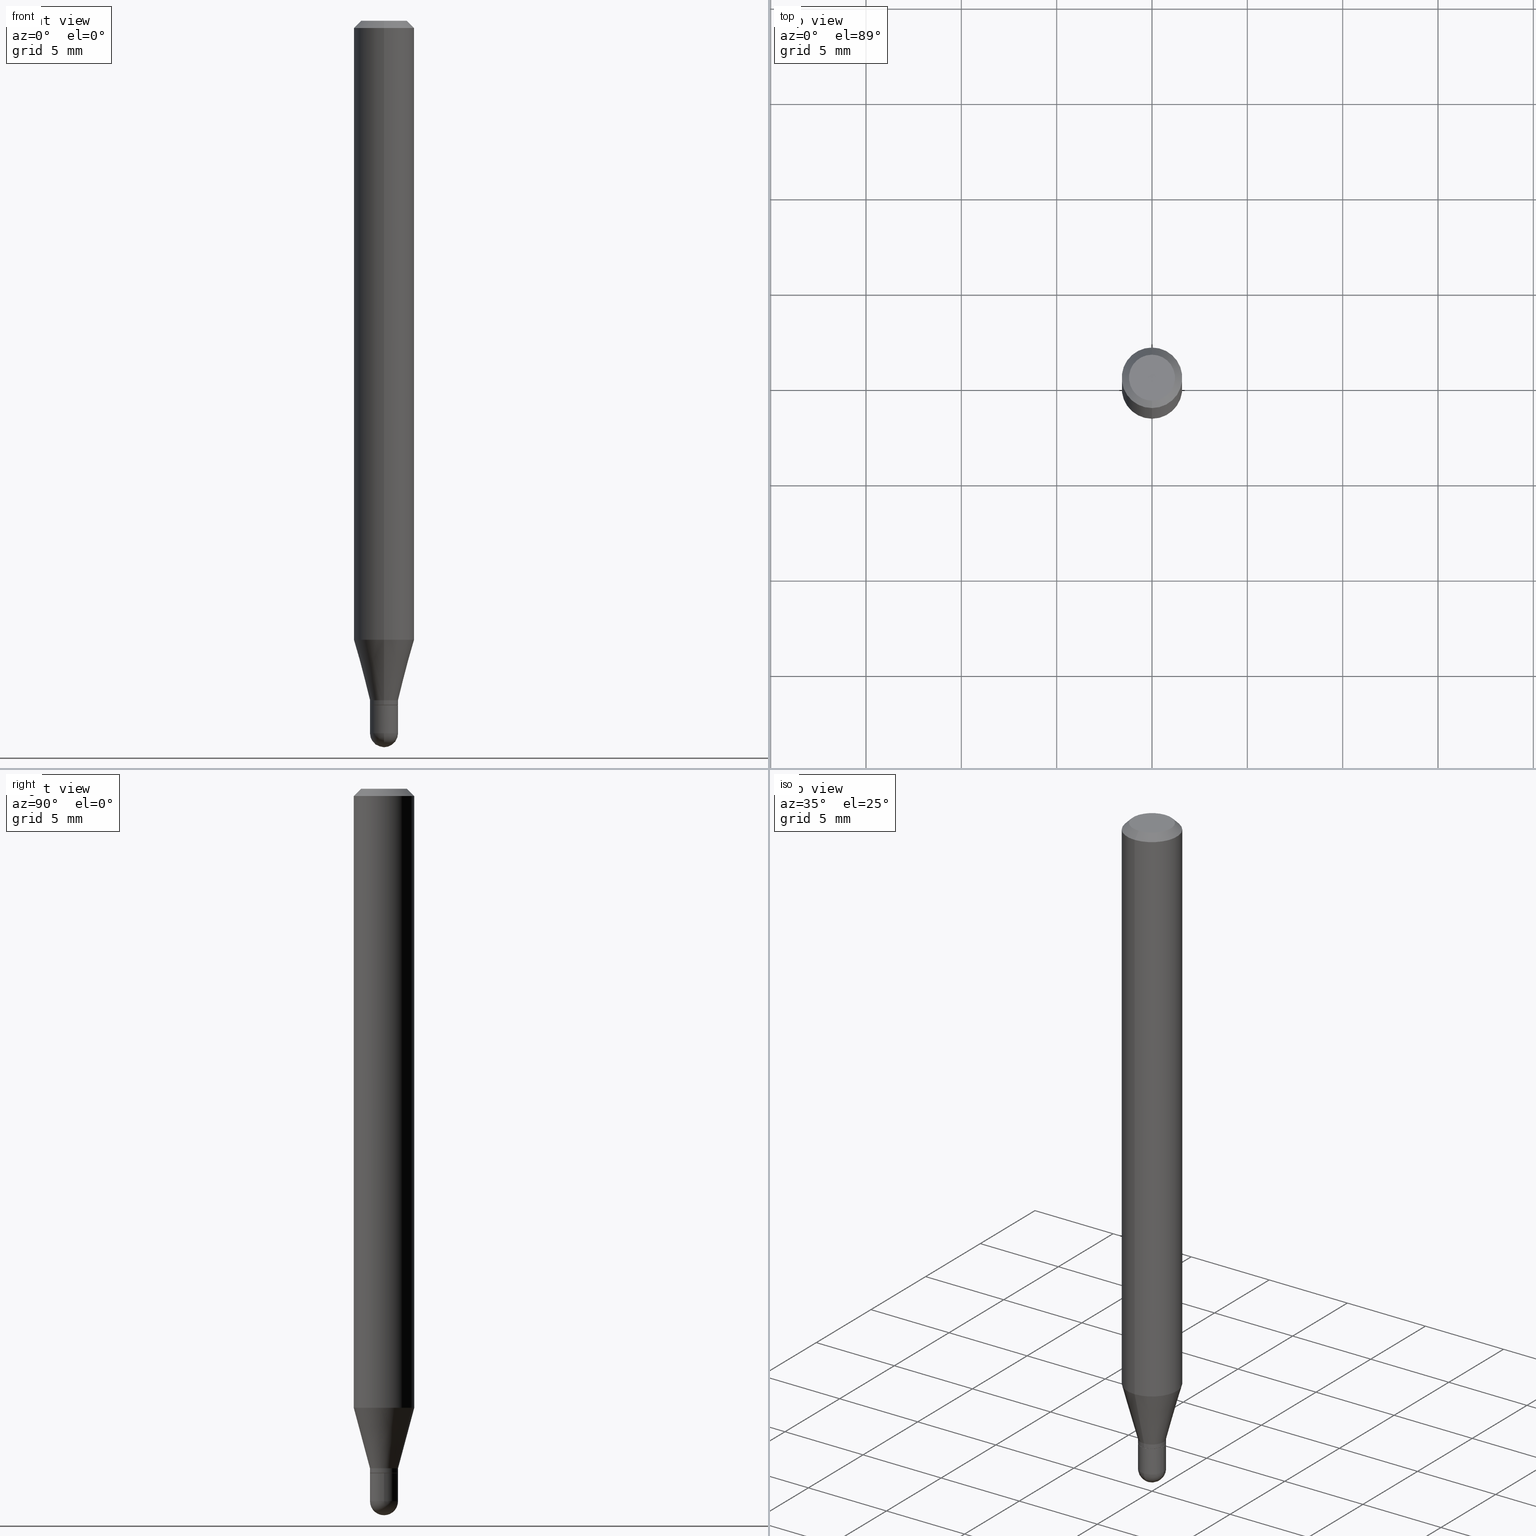
[diagram: canonical four-view strip — front | top / right | iso, engineering-drawing reading convention]
A machine part, canonical four-view strip (front | top / right | iso — engineering-drawing reading convention). The complete STEP part file that produces these views, byte-faithful:
ISO-10303-21;
HEADER;
FILE_DESCRIPTION (( 'STEP AP203' ),
    '1' );
FILE_NAME ('02555.STEP',
    '2024-03-07T20:24:32',
    ( '' ),
    ( '' ),
    'SwSTEP 2.0',
    'SolidWorks 2023',
    '' );
FILE_SCHEMA (( 'CONFIG_CONTROL_DESIGN' ));
ENDSEC;

DATA;
#1 = EDGE_CURVE ( 'NONE', #378, #323, #385, .T. ) ;
#2 = VERTEX_POINT ( 'NONE', #227 ) ;
#3 = CALENDAR_DATE ( 2024, 7, 3 ) ;
#4 = ORIENTED_EDGE ( 'NONE', *, *, #7, .F. ) ;
#5 = CARTESIAN_POINT ( 'NONE',  ( 3.316907271900976096E-16, 0.04749999999999999362, -3.299189830042509647E-16 ) ) ;
#6 = APPROVAL_ROLE ( '' ) ;
#7 = EDGE_CURVE ( 'NONE', #416, #2, #239, .T. ) ;
#8 = CYLINDRICAL_SURFACE ( 'NONE', #137, 0.02900000000000000147 ) ;
#9 = CARTESIAN_POINT ( 'NONE',  ( 3.668196789959787324E-31, -5.237231201093571383E-17, -0.01500000000000032904 ) ) ;
#10 = ORIENTED_EDGE ( 'NONE', *, *, #46, .T. ) ;
#11 = EDGE_LOOP ( 'NONE', ( #65, #201, #116, #58 ) ) ;
#12 = AXIS2_PLACEMENT_3D ( 'NONE', #178, #182, #143 ) ;
#13 = AXIS2_PLACEMENT_3D ( 'NONE', #117, #276, #393 ) ;
#14 = EDGE_LOOP ( 'NONE', ( #82, #89, #37, #197 ) ) ;
#15 = FACE_OUTER_BOUND ( 'NONE', #14, .T. ) ;
#16 = CARTESIAN_POINT ( 'NONE',  ( 4.364351673553919652E-16, 0.06249999999999995143, -0.01500000000000054588 ) ) ;
#17 = AXIS2_PLACEMENT_3D ( 'NONE', #281, #473, #343 ) ;
#18 = CIRCLE ( 'NONE', #490, 0.06250000000000000000 ) ;
#19 = VERTEX_POINT ( 'NONE', #483 ) ;
#20 = LINE ( 'NONE', #64, #56 ) ;
#21 = EDGE_CURVE ( 'NONE', #19, #365, #290, .T. ) ;
#22 = ORIENTED_EDGE ( 'NONE', *, *, #133, .T. ) ;
#23 = CYLINDRICAL_SURFACE ( 'NONE', #160, 0.06250000000000000000 ) ;
#24 = EDGE_CURVE ( 'NONE', #390, #60, #268, .T. ) ;
#25 = FACE_OUTER_BOUND ( 'NONE', #465, .T. ) ;
#26 = DIRECTION ( 'NONE',  ( 1.000000000000000000, -6.982962677686265922E-15, 0.000000000000000000 ) ) ;
#27 = VECTOR ( 'NONE', #436, 39.37007874015748854 ) ;
#28 = CARTESIAN_POINT ( 'NONE',  ( 3.597284613898336423E-29, -5.135969049438267814E-15, -1.471000000000000307 ) ) ;
#29 = LINE ( 'NONE', #255, #57 ) ;
#30 = ORIENTED_EDGE ( 'NONE', *, *, #362, .F. ) ;
#31 = DIRECTION ( 'NONE',  ( 1.000000000000000000, -6.982962677686265922E-15, 4.883557194083112340E-29 ) ) ;
#32 = DIRECTION ( 'NONE',  ( -2.445464526639804686E-29, 3.491487467395637572E-15, 1.000000000000000000 ) ) ;
#33 = PERSON_AND_ORGANIZATION_ROLE ( 'design_owner' ) ;
#34 = DIRECTION ( 'NONE',  ( -6.982962677686265922E-15, -1.000000000000000000, 0.000000000000000000 ) ) ;
#35 = APPROVAL_DATE_TIME ( #384, #97 ) ;
#36 = CIRCLE ( 'NONE', #442, 0.04749999999999999362 ) ;
#37 = ORIENTED_EDGE ( 'NONE', *, *, #507, .T. ) ;
#38 = AXIS2_PLACEMENT_3D ( 'NONE', #261, #475, #420 ) ;
#39 = DIRECTION ( 'NONE',  ( -6.982962677686265922E-15, -1.000000000000000000, 3.483106191921935554E-15 ) ) ;
#40 = SECURITY_CLASSIFICATION_LEVEL ( 'unclassified' ) ;
#41 = VERTEX_POINT ( 'NONE', #354 ) ;
#42 = LINE ( 'NONE', #162, #404 ) ;
#43 = EDGE_LOOP ( 'NONE', ( #455, #297, #247, #307 ) ) ;
#44 = DIRECTION ( 'NONE',  ( -4.937700262164674260E-15, -0.7071067811865632269, 0.7071067811865319186 ) ) ;
#45 = LOCAL_TIME ( 15, 24, 32.00000000000000000, #74 ) ;
#46 = EDGE_CURVE ( 'NONE', #78, #396, #120, .T. ) ;
#47 = APPROVAL ( #353, 'UNSPECIFIED' ) ;
#48 = ADVANCED_FACE ( 'NONE', ( #230 ), #233, .T. ) ;
#49 = VECTOR ( 'NONE', #418, 39.37007874015748143 ) ;
#50 = AXIS2_PLACEMENT_3D ( 'NONE', #402, #168, #128 ) ;
#51 = VERTEX_POINT ( 'NONE', #237 ) ;
#52 = ADVANCED_FACE ( 'NONE', ( #470 ), #8, .T. ) ;
#53 = FACE_OUTER_BOUND ( 'NONE', #313, .T. ) ;
#54 = ORIENTED_EDGE ( 'NONE', *, *, #386, .T. ) ;
#55 = AXIS2_PLACEMENT_3D ( 'NONE', #136, #220, #464 ) ;
#56 = VECTOR ( 'NONE', #103, 39.37007874015748143 ) ;
#57 = VECTOR ( 'NONE', #183, 39.37007874015748143 ) ;
#58 = ORIENTED_EDGE ( 'NONE', *, *, #147, .F. ) ;
#59 = DIRECTION ( 'NONE',  ( -2.445468806185136597E-29, 3.491481338843145583E-15, 1.000000000000000000 ) ) ;
#60 = VERTEX_POINT ( 'NONE', #318 ) ;
#61 = DIRECTION ( 'NONE',  ( -6.982962677686265922E-15, -1.000000000000000000, 0.000000000000000000 ) ) ;
#62 = CARTESIAN_POINT ( 'NONE',  ( 3.668196789959787324E-31, -5.237231201093571383E-17, -0.01500000000000032904 ) ) ;
#63 = DIRECTION ( 'NONE',  ( 1.000000000000000000, -7.105427357601001070E-15, 4.926315508542082329E-29 ) ) ;
#64 = CARTESIAN_POINT ( 'NONE',  ( -4.364351673553916201E-16, -0.06250000000000000000, 2.182179667122273482E-16 ) ) ;
#65 = ORIENTED_EDGE ( 'NONE', *, *, #491, .F. ) ;
#66 = ORIENTED_EDGE ( 'NONE', *, *, #411, .F. ) ;
#67 = CLOSED_SHELL ( 'NONE', ( #52, #435, #257, #450, #251 ) ) ;
#68 = DIRECTION ( 'NONE',  ( -1.000000000000000000, 6.982962677686265922E-15, -4.883557194083112340E-29 ) ) ;
#69 = EDGE_CURVE ( 'NONE', #41, #190, #299, .T. ) ;
#70 = APPLICATION_PROTOCOL_DEFINITION ( 'international standard', 'config_control_design', 1994, #370 ) ;
#71 = DIRECTION ( 'NONE',  ( -2.445464526639804686E-29, 3.491487467395637572E-15, 1.000000000000000000 ) ) ;
#72 = CYLINDRICAL_SURFACE ( 'NONE', #279, 0.02899999999999992514 ) ;
#73 = ORIENTED_EDGE ( 'NONE', *, *, #69, .T. ) ;
#74 = COORDINATED_UNIVERSAL_TIME_OFFSET ( 5, 0, .BEHIND. ) ;
#75 = CARTESIAN_POINT ( 'NONE',  ( 3.597284613898336423E-29, -5.135969049438267814E-15, -1.471000000000000307 ) ) ;
#76 = CARTESIAN_POINT ( 'NONE',  ( 3.430986730875647488E-29, -4.898556916756080332E-15, -1.403000000000000247 ) ) ;
#77 = COORDINATED_UNIVERSAL_TIME_OFFSET ( 5, 0, .BEHIND. ) ;
#78 = VERTEX_POINT ( 'NONE', #433 ) ;
#79 = CIRCLE ( 'NONE', #381, 0.02900000000000000147 ) ;
#80 = CC_DESIGN_APPROVAL ( #97, ( #205 ) ) ;
#81 = APPROVAL_ROLE ( '' ) ;
#82 = ORIENTED_EDGE ( 'NONE', *, *, #325, .F. ) ;
#83 = CC_DESIGN_DATE_AND_TIME_ASSIGNMENT ( #184, #266, ( #138 ) ) ;
#84 = EDGE_LOOP ( 'NONE', ( #66, #314, #244, #309 ) ) ;
#85 = ORIENTED_EDGE ( 'NONE', *, *, #24, .T. ) ;
#86 = AXIS2_PLACEMENT_3D ( 'NONE', #75, #88, #485 ) ;
#87 = CC_DESIGN_PERSON_AND_ORGANIZATION_ASSIGNMENT ( #477, #271, ( #405 ) ) ;
#88 = DIRECTION ( 'NONE',  ( -2.445468806185136597E-29, 3.491481338843145583E-15, 1.000000000000000000 ) ) ;
#89 = ORIENTED_EDGE ( 'NONE', *, *, #46, .F. ) ;
#90 = DIRECTION ( 'NONE',  ( -6.982962677686265922E-15, -1.000000000000000000, 0.000000000000000000 ) ) ;
#91 = CARTESIAN_POINT ( 'NONE',  ( -0.02900000000000000147, 2.060573933704290644E-16, -1.426491176173922626E-30 ) ) ;
#92 = PLANE ( 'NONE',  #12 ) ;
#93 = DIRECTION ( 'NONE',  ( -6.982962677686266711E-15, -1.000000000000000000, 3.491487467395637572E-15 ) ) ;
#94 = EDGE_LOOP ( 'NONE', ( #100, #73, #118, #4 ) ) ;
#95 = FACE_OUTER_BOUND ( 'NONE', #427, .T. ) ;
#96 = DIRECTION ( 'NONE',  ( -2.445464526639804406E-29, 3.491487467395637572E-15, 1.000000000000000000 ) ) ;
#97 = APPROVAL ( #188, 'UNSPECIFIED' ) ;
#98 = AXIS2_PLACEMENT_3D ( 'NONE', #508, #219, #471 ) ;
#99 = EDGE_CURVE ( 'NONE', #430, #159, #211, .T. ) ;
#100 = ORIENTED_EDGE ( 'NONE', *, *, #386, .F. ) ;
#101 = CARTESIAN_POINT ( 'NONE',  ( 0.000000000000000000, 0.000000000000000000, 0.000000000000000000 ) ) ;
#102 = DIRECTION ( 'NONE',  ( -6.982962677686265922E-15, -1.000000000000000000, 0.000000000000000000 ) ) ;
#103 = DIRECTION ( 'NONE',  ( -2.445464526639804406E-29, 3.491487467395637572E-15, 1.000000000000000000 ) ) ;
#104 = PERSON_AND_ORGANIZATION_ROLE ( 'design_supplier' ) ;
#105 = DIRECTION ( 'NONE',  ( -2.445468806185136597E-29, 3.491481338843145583E-15, 1.000000000000000000 ) ) ;
#106 = DIRECTION ( 'NONE',  ( -6.982962677686265922E-15, -1.000000000000000000, 3.483106191921935554E-15 ) ) ;
#107 = APPLICATION_PROTOCOL_DEFINITION ( 'international standard', 'config_control_design', 1994, #496 ) ;
#108 = ORIENTED_EDGE ( 'NONE', *, *, #288, .F. ) ;
#109 = APPROVAL_PERSON_ORGANIZATION ( #339, #97, #81 ) ;
#110 = DIRECTION ( 'NONE',  ( -2.445464526639804686E-29, 3.491487467395637572E-15, 1.000000000000000000 ) ) ;
#111 = EDGE_LOOP ( 'NONE', ( #142, #355 ) ) ;
#112 = APPROVAL_ROLE ( '' ) ;
#113 = EDGE_CURVE ( 'NONE', #365, #19, #349, .T. ) ;
#114 = EDGE_LOOP ( 'NONE', ( #10, #352 ) ) ;
#115 = EDGE_CURVE ( 'NONE', #323, #363, #79, .T. ) ;
#116 = ORIENTED_EDGE ( 'NONE', *, *, #163, .T. ) ;
#117 = CARTESIAN_POINT ( 'NONE',  ( 3.430986730875647488E-29, -4.898556916756080332E-15, -1.403000000000000247 ) ) ;
#118 = ORIENTED_EDGE ( 'NONE', *, *, #123, .T. ) ;
#119 = DIRECTION ( 'NONE',  ( -6.982962677686266711E-15, -1.000000000000000000, 3.491487467395637572E-15 ) ) ;
#120 = CIRCLE ( 'NONE', #181, 0.04749999999999999362 ) ;
#121 = ORIENTED_EDGE ( 'NONE', *, *, #322, .F. ) ;
#122 = CARTESIAN_POINT ( 'NONE',  ( 3.430986730875647488E-29, -4.898556916756080332E-15, -1.403000000000000247 ) ) ;
#123 = EDGE_CURVE ( 'NONE', #190, #2, #42, .T. ) ;
#124 = CIRCLE ( 'NONE', #256, 0.02900000000000000147 ) ;
#125 = CIRCLE ( 'NONE', #50, 0.02850000000000000103 ) ;
#126 = ORIENTED_EDGE ( 'NONE', *, *, #252, .F. ) ;
#127 = CIRCLE ( 'NONE', #192, 0.02900000000000000147 ) ;
#128 = DIRECTION ( 'NONE',  ( -6.982962677686265922E-15, -1.000000000000000000, 0.000000000000000000 ) ) ;
#129 = LINE ( 'NONE', #263, #286 ) ;
#130 = AXIS2_PLACEMENT_3D ( 'NONE', #62, #341, #106 ) ;
#131 = FACE_OUTER_BOUND ( 'NONE', #84, .T. ) ;
#132 = ORIENTED_EDGE ( 'NONE', *, *, #491, .T. ) ;
#133 = EDGE_CURVE ( 'NONE', #378, #51, #489, .T. ) ;
#134 = CARTESIAN_POINT ( 'NONE',  ( -2.025059176529011933E-16, -0.02899999999999992514, 1.012531365544732252E-16 ) ) ;
#135 = CONICAL_SURFACE ( 'NONE', #298, 0.02899999999999992514, 0.2617993877991505736 ) ;
#136 = CARTESIAN_POINT ( 'NONE',  ( 3.668196789959787324E-31, -5.237231201093571383E-17, -0.01500000000000032904 ) ) ;
#137 = AXIS2_PLACEMENT_3D ( 'NONE', #158, #105, #423 ) ;
#138 = SECURITY_CLASSIFICATION ( '', '', #40 ) ;
#139 = DIRECTION ( 'NONE',  ( 6.982962677686265922E-15, 1.000000000000000000, -3.483106191921935554E-15 ) ) ;
#140 = DIRECTION ( 'NONE',  ( -1.000000000000000000, 6.982962677686265922E-15, -4.876176775795935793E-29 ) ) ;
#141 = CALENDAR_DATE ( 2024, 7, 3 ) ;
#142 = ORIENTED_EDGE ( 'NONE', *, *, #115, .T. ) ;
#143 = DIRECTION ( 'NONE',  ( -6.982962677686265922E-15, -1.000000000000000000, 3.491487467395637572E-15 ) ) ;
#144 = CARTESIAN_POINT ( 'NONE',  ( -4.364351673553912750E-16, -0.06250000000000005551, -0.01500000000000011047 ) ) ;
#145 = APPROVAL_STATUS ( 'not_yet_approved' ) ;
#146 = FACE_OUTER_BOUND ( 'NONE', #454, .T. ) ;
#147 = EDGE_CURVE ( 'NONE', #390, #317, #254, .T. ) ;
#148 = DIRECTION ( 'NONE',  ( 1.000000000000000000, 0.000000000000000000, 0.000000000000000000 ) ) ;
#149 = AXIS2_PLACEMENT_3D ( 'NONE', #326, #204, #90 ) ;
#150 = DIRECTION ( 'NONE',  ( -2.445464526639804686E-29, 3.491487467395637572E-15, 1.000000000000000000 ) ) ;
#151 = AXIS2_PLACEMENT_3D ( 'NONE', #500, #305, #102 ) ;
#152 = CARTESIAN_POINT ( 'NONE',  ( -3.773273898774340269E-16, -0.04749999999999999362, -1.623010019046235380E-16 ) ) ;
#153 = ADVANCED_FACE ( 'NONE', ( #387 ), #191, .F. ) ;
#154 = CALENDAR_DATE ( 2024, 7, 3 ) ;
#155 = ORIENTED_EDGE ( 'NONE', *, *, #115, .F. ) ;
#156 = ADVANCED_FACE ( 'NONE', ( #274 ), #360, .T. ) ;
#157 = COORDINATED_UNIVERSAL_TIME_OFFSET ( 5, 0, .BEHIND. ) ;
#158 = CARTESIAN_POINT ( 'NONE',  ( 0.000000000000000000, 0.000000000000000000, 0.000000000000000000 ) ) ;
#159 = VERTEX_POINT ( 'NONE', #388 ) ;
#160 = AXIS2_PLACEMENT_3D ( 'NONE', #177, #306, #472 ) ;
#161 = ORIENTED_EDGE ( 'NONE', *, *, #356, .F. ) ;
#162 = CARTESIAN_POINT ( 'NONE',  ( -1.990144363140240186E-16, -0.02850000000000493458, -1.413000000000000256 ) ) ;
#163 = EDGE_CURVE ( 'NONE', #365, #317, #446, .T. ) ;
#164 = DATE_AND_TIME ( #350, #45 ) ;
#165 = CARTESIAN_POINT ( 'NONE',  ( 3.455447423139598357E-29, -4.933463131785365512E-15, -1.413000000000000256 ) ) ;
#166 = ORGANIZATION ( 'UNSPECIFIED', 'UNSPECIFIED', '' ) ;
#167 = CLOSED_SHELL ( 'NONE', ( #295, #469, #260, #316, #48, #408, #236, #452, #153, #438, #156, #499 ) ) ;
#168 = DIRECTION ( 'NONE',  ( -2.445464526639804686E-29, 3.491487467395637572E-15, 1.000000000000000000 ) ) ;
#169 = CC_DESIGN_PERSON_AND_ORGANIZATION_ASSIGNMENT ( #193, #33, ( #294 ) ) ;
#170 = CARTESIAN_POINT ( 'NONE',  ( 8.024710082652215884E-45, -1.145719939007336603E-30, -3.281466566059163187E-16 ) ) ;
#171 =( NAMED_UNIT ( * ) SI_UNIT ( $, .STERADIAN. ) SOLID_ANGLE_UNIT ( ) );
#172 = EDGE_LOOP ( 'NONE', ( #361, #282, #478, #228, #30 ) ) ;
#173 = CC_DESIGN_APPROVAL ( #371, ( #138 ) ) ;
#174 = CC_DESIGN_PERSON_AND_ORGANIZATION_ASSIGNMENT ( #431, #510, ( #138 ) ) ;
#175 = CARTESIAN_POINT ( 'NONE',  ( -0.02900000000000000147, -4.828658697241387426E-15, -1.413000000000000256 ) ) ;
#176 = ORIENTED_EDGE ( 'NONE', *, *, #195, .F. ) ;
#177 = CARTESIAN_POINT ( 'NONE',  ( 0.000000000000000000, 0.000000000000000000, 0.000000000000000000 ) ) ;
#178 = CARTESIAN_POINT ( 'NONE',  ( 3.455441376142044038E-29, -4.933471791430036546E-15, -1.413000000000000256 ) ) ;
#179 = DIRECTION ( 'NONE',  ( 1.000000000000000000, -6.982962677686265922E-15, 0.000000000000000000 ) ) ;
#180 = PERSON_AND_ORGANIZATION ( #443, #166 ) ;
#181 = AXIS2_PLACEMENT_3D ( 'NONE', #512, #150, #119 ) ;
#182 = DIRECTION ( 'NONE',  ( -2.445464526639804406E-29, 3.491487467395637572E-15, 1.000000000000000000 ) ) ;
#183 = DIRECTION ( 'NONE',  ( 5.024295867788190974E-15, 0.7071067811865681119, 0.7071067811865270336 ) ) ;
#184 = DATE_AND_TIME ( #141, #366 ) ;
#185 = ORIENTED_EDGE ( 'NONE', *, *, #457, .T. ) ;
#186 = DIRECTION ( 'NONE',  ( -6.982962677686265922E-15, -1.000000000000000000, 0.000000000000000000 ) ) ;
#187 = CARTESIAN_POINT ( 'NONE',  ( 0.000000000000000000, 0.000000000000000000, 0.000000000000000000 ) ) ;
#188 = APPROVAL_STATUS ( 'not_yet_approved' ) ;
#189 = CARTESIAN_POINT ( 'NONE',  ( 4.440892098500625669E-16, 0.06250000000000000000, -2.182179667122273482E-16 ) ) ;
#190 = VERTEX_POINT ( 'NONE', #202 ) ;
#191 = PLANE ( 'NONE',  #245 ) ;
#192 = AXIS2_PLACEMENT_3D ( 'NONE', #375, #505, #179 ) ;
#193 = PERSON_AND_ORGANIZATION ( #443, #166 ) ;
#194 = EDGE_LOOP ( 'NONE', ( #269, #287, #155, #329, #22 ) ) ;
#195 = EDGE_CURVE ( 'NONE', #2, #416, #267, .T. ) ;
#196 = DATE_AND_TIME ( #3, #231 ) ;
#197 = ORIENTED_EDGE ( 'NONE', *, *, #395, .T. ) ;
#198 = ORIENTED_EDGE ( 'NONE', *, *, #395, .F. ) ;
#199 = ORIENTED_EDGE ( 'NONE', *, *, #123, .F. ) ;
#200 = DIRECTION ( 'NONE',  ( -2.445464526639804686E-29, 3.491487467395637572E-15, 1.000000000000000000 ) ) ;
#201 = ORIENTED_EDGE ( 'NONE', *, *, #21, .T. ) ;
#202 = CARTESIAN_POINT ( 'NONE',  ( -1.990144363140240186E-16, -0.02850000000000493458, -1.413000000000000256 ) ) ;
#203 = EDGE_CURVE ( 'NONE', #190, #41, #125, .T. ) ;
#204 = DIRECTION ( 'NONE',  ( -2.445464526639804686E-29, 3.491487467395637572E-15, 1.000000000000000000 ) ) ;
#205 = PRODUCT_DEFINITION_FORMATION_WITH_SPECIFIED_SOURCE ( 'ANY', '', #294, .NOT_KNOWN. ) ;
#206 = AXIS2_PLACEMENT_3D ( 'NONE', #272, #432, #497 ) ;
#207 = ORIENTED_EDGE ( 'NONE', *, *, #457, .F. ) ;
#208 = EDGE_CURVE ( 'NONE', #430, #363, #403, .T. ) ;
#209 = CARTESIAN_POINT ( 'NONE',  ( -0.02900000000000000147, -4.828658697241387426E-15, -1.471000000000000307 ) ) ;
#210 = EDGE_LOOP ( 'NONE', ( #462, #248, #277, #198 ) ) ;
#211 = CIRCLE ( 'NONE', #86, 0.02900000000000000147 ) ;
#212 = DIRECTION ( 'NONE',  ( -2.445468806185136597E-29, 3.491481338843145583E-15, 1.000000000000000000 ) ) ;
#213 = VECTOR ( 'NONE', #96, 39.37007874015748143 ) ;
#214 = ORIENTED_EDGE ( 'NONE', *, *, #203, .F. ) ;
#215 = FACE_OUTER_BOUND ( 'NONE', #172, .T. ) ;
#216 = SPHERICAL_SURFACE ( 'NONE', #284, 0.02900000000000007780 ) ;
#217 = CARTESIAN_POINT ( 'NONE',  ( 0.02900000000000000147, -5.135969049438267025E-15, -1.413000000000000256 ) ) ;
#218 = PRODUCT_RELATED_PRODUCT_CATEGORY ( 'detail', '', ( #294 ) ) ;
#219 = DIRECTION ( 'NONE',  ( -2.445464526639804686E-29, 3.491487467395637572E-15, 1.000000000000000000 ) ) ;
#220 = DIRECTION ( 'NONE',  ( 2.445464526639804686E-29, -3.491487467395637572E-15, -1.000000000000000000 ) ) ;
#221 = DATE_TIME_ROLE ( 'creation_date' ) ;
#222 = AXIS2_PLACEMENT_3D ( 'NONE', #187, #59, #383 ) ;
#223 = DIRECTION ( 'NONE',  ( -2.445464526639804686E-29, 3.491487467395637572E-15, 1.000000000000000000 ) ) ;
#224 = FACE_OUTER_BOUND ( 'NONE', #492, .T. ) ;
#225 = FACE_OUTER_BOUND ( 'NONE', #482, .T. ) ;
#226 = APPROVAL_DATE_TIME ( #468, #47 ) ;
#227 = CARTESIAN_POINT ( 'NONE',  ( -2.025059176528673462E-16, -0.02900000000000495584, -1.412500000000000311 ) ) ;
#228 = ORIENTED_EDGE ( 'NONE', *, *, #1, .T. ) ;
#229 = CC_DESIGN_PERSON_AND_ORGANIZATION_ASSIGNMENT ( #392, #104, ( #205 ) ) ;
#230 = FACE_OUTER_BOUND ( 'NONE', #376, .T. ) ;
#231 = LOCAL_TIME ( 15, 24, 32.00000000000000000, #157 ) ;
#232 = CALENDAR_DATE ( 2024, 7, 3 ) ;
#233 = CONICAL_SURFACE ( 'NONE', #13, 0.02899999999999992514, 0.2617993877991505736 ) ;
#234 = ORIENTED_EDGE ( 'NONE', *, *, #507, .F. ) ;
#235 = AXIS2_PLACEMENT_3D ( 'NONE', #466, #63, #417 ) ;
#236 = ADVANCED_FACE ( 'NONE', ( #264 ), #23, .T. ) ;
#237 = CARTESIAN_POINT ( 'NONE',  ( 2.060573933704652780E-16, 0.02899999999999490485, -1.471000000000000307 ) ) ;
#238 = FACE_OUTER_BOUND ( 'NONE', #11, .T. ) ;
#239 = CIRCLE ( 'NONE', #17, 0.02899999999999992514 ) ;
#240 = CC_DESIGN_SECURITY_CLASSIFICATION ( #138, ( #205 ) ) ;
#241 = ORIENTED_EDGE ( 'NONE', *, *, #7, .T. ) ;
#242 = VERTEX_POINT ( 'NONE', #460 ) ;
#243 = EDGE_CURVE ( 'NONE', #317, #389, #20, .T. ) ;
#244 = ORIENTED_EDGE ( 'NONE', *, *, #99, .F. ) ;
#245 = AXIS2_PLACEMENT_3D ( 'NONE', #5, #358, #315 ) ;
#246 = DIRECTION ( 'NONE',  ( 4.937700262164548042E-15, 0.7071067811865451302, -0.7071067811865499042 ) ) ;
#247 = ORIENTED_EDGE ( 'NONE', *, *, #113, .F. ) ;
#248 = ORIENTED_EDGE ( 'NONE', *, *, #147, .T. ) ;
#249 = CARTESIAN_POINT ( 'NONE',  ( -4.364351673553605587E-16, -0.06250000000000449640, -1.277976297946442852 ) ) ;
#250 =( NAMED_UNIT ( * ) PLANE_ANGLE_UNIT ( ) SI_UNIT ( $, .RADIAN. ) );
#251 = ADVANCED_FACE ( 'NONE', ( #215 ), #415, .T. ) ;
#252 = EDGE_CURVE ( 'NONE', #389, #60, #448, .T. ) ;
#253 = CONICAL_SURFACE ( 'NONE', #368, 0.06250000000000000000, 0.7853981633974483900 ) ;
#254 = CIRCLE ( 'NONE', #374, 0.06250000000000000000 ) ;
#255 = CARTESIAN_POINT ( 'NONE',  ( 2.025046796916630729E-16, 0.02849999999999506400, -1.413000000000000256 ) ) ;
#256 = AXIS2_PLACEMENT_3D ( 'NONE', #28, #291, #504 ) ;
#257 = ADVANCED_FACE ( 'NONE', ( #421 ), #345, .F. ) ;
#258 = LINE ( 'NONE', #16, #439 ) ;
#259 = LINE ( 'NONE', #382, #49 ) ;
#260 = ADVANCED_FACE ( 'NONE', ( #95 ), #493, .T. ) ;
#261 = CARTESIAN_POINT ( 'NONE',  ( 3.125245702514488785E-29, -4.462038227908679794E-15, -1.277976297946443296 ) ) ;
#262 = CARTESIAN_POINT ( 'NONE',  ( 0.02900000000000000147, -5.237222008264718177E-15, -1.471000000000000307 ) ) ;
#263 = CARTESIAN_POINT ( 'NONE',  ( 2.060573933704627882E-16, 0.02899999999999502281, -1.403000000000000247 ) ) ;
#264 = FACE_OUTER_BOUND ( 'NONE', #210, .T. ) ;
#265 = VECTOR ( 'NONE', #506, 39.37007874015748143 ) ;
#266 = DATE_TIME_ROLE ( 'classification_date' ) ;
#267 = CIRCLE ( 'NONE', #149, 0.02899999999999992514 ) ;
#268 = LINE ( 'NONE', #189, #440 ) ;
#269 = ORIENTED_EDGE ( 'NONE', *, *, #451, .T. ) ;
#270 = CC_DESIGN_DATE_AND_TIME_ASSIGNMENT ( #196, #221, ( #405 ) ) ;
#271 = PERSON_AND_ORGANIZATION_ROLE ( 'creator' ) ;
#272 = CARTESIAN_POINT ( 'NONE',  ( 3.455441376142044038E-29, -4.933471791430036546E-15, -1.413000000000000256 ) ) ;
#273 = DIRECTION ( 'NONE',  ( -6.982962677686265922E-15, -1.000000000000000000, 0.000000000000000000 ) ) ;
#274 = FACE_OUTER_BOUND ( 'NONE', #94, .T. ) ;
#275 = MECHANICAL_CONTEXT ( 'NONE', #496, 'mechanical' ) ;
#276 = DIRECTION ( 'NONE',  ( -2.445464526639804686E-29, 3.491487467395637572E-15, 1.000000000000000000 ) ) ;
#277 = ORIENTED_EDGE ( 'NONE', *, *, #243, .T. ) ;
#278 = ORIENTED_EDGE ( 'NONE', *, *, #163, .F. ) ;
#279 = AXIS2_PLACEMENT_3D ( 'NONE', #308, #110, #429 ) ;
#280 = CARTESIAN_POINT ( 'NONE',  ( 0.000000000000000000, 0.000000000000000000, 0.000000000000000000 ) ) ;
#281 = CARTESIAN_POINT ( 'NONE',  ( 3.454218643878724463E-29, -4.931726047696338499E-15, -1.412500000000000311 ) ) ;
#282 = ORIENTED_EDGE ( 'NONE', *, *, #99, .T. ) ;
#283 = ORIENTED_EDGE ( 'NONE', *, *, #411, .T. ) ;
#284 = AXIS2_PLACEMENT_3D ( 'NONE', #379, #31, #186 ) ;
#285 = VECTOR ( 'NONE', #369, 39.37007874015748143 ) ;
#286 = VECTOR ( 'NONE', #344, 39.37007874015748143 ) ;
#287 = ORIENTED_EDGE ( 'NONE', *, *, #208, .T. ) ;
#288 = EDGE_CURVE ( 'NONE', #242, #159, #494, .T. ) ;
#289 = DIRECTION ( 'NONE',  ( -2.445464526639804686E-29, 3.491487467395637572E-15, 1.000000000000000000 ) ) ;
#290 = CIRCLE ( 'NONE', #331, 0.02899999999999992514 ) ;
#291 = DIRECTION ( 'NONE',  ( -2.445468806185136597E-29, 3.491481338843145583E-15, 1.000000000000000000 ) ) ;
#292 =( CONVERSION_BASED_UNIT ( 'INCH', #406 ) LENGTH_UNIT ( ) NAMED_UNIT ( #372 ) );
#293 = FACE_OUTER_BOUND ( 'NONE', #43, .T. ) ;
#294 = PRODUCT ( '02555', '02555', '', ( #275 ) ) ;
#295 = ADVANCED_FACE ( 'NONE', ( #293 ), #338, .T. ) ;
#296 = DIRECTION ( 'NONE',  ( -2.445464526639804686E-29, 3.491487467395637572E-15, 1.000000000000000000 ) ) ;
#297 = ORIENTED_EDGE ( 'NONE', *, *, #322, .T. ) ;
#298 = AXIS2_PLACEMENT_3D ( 'NONE', #76, #419, #61 ) ;
#299 = CIRCLE ( 'NONE', #413, 0.02850000000000000103 ) ;
#300 = CYLINDRICAL_SURFACE ( 'NONE', #511, 0.06250000000000000000 ) ;
#301 = LOCAL_TIME ( 15, 24, 32.00000000000000000, #342 ) ;
#302 = LINE ( 'NONE', #134, #213 ) ;
#303 = DIRECTION ( 'NONE',  ( 0.000000000000000000, 0.000000000000000000, 1.000000000000000000 ) ) ;
#304 = CARTESIAN_POINT ( 'NONE',  ( 0.02900000000000000147, -2.025059176529017356E-16, 1.414091264980821422E-30 ) ) ;
#305 = DIRECTION ( 'NONE',  ( 1.000000000000000000, -6.982962677686265922E-15, 4.883557194083112340E-29 ) ) ;
#306 = DIRECTION ( 'NONE',  ( -2.445464526639804686E-29, 3.491487467395637572E-15, 1.000000000000000000 ) ) ;
#307 = ORIENTED_EDGE ( 'NONE', *, *, #373, .F. ) ;
#308 = CARTESIAN_POINT ( 'NONE',  ( 0.000000000000000000, 0.000000000000000000, 0.000000000000000000 ) ) ;
#309 = ORIENTED_EDGE ( 'NONE', *, *, #451, .F. ) ;
#310 = AXIS2_PLACEMENT_3D ( 'NONE', #391, #324, #486 ) ;
#311 = LOCAL_TIME ( 15, 24, 32.00000000000000000, #77 ) ;
#312 = ORIENTED_EDGE ( 'NONE', *, *, #503, .F. ) ;
#313 = EDGE_LOOP ( 'NONE', ( #108, #283, #410, #161 ) ) ;
#314 = ORIENTED_EDGE ( 'NONE', *, *, #288, .T. ) ;
#315 = DIRECTION ( 'NONE',  ( 6.982962677686265922E-15, 1.000000000000000000, -3.491487467395637572E-15 ) ) ;
#316 = ADVANCED_FACE ( 'NONE', ( #225 ), #300, .T. ) ;
#317 = VERTEX_POINT ( 'NONE', #249 ) ;
#318 = CARTESIAN_POINT ( 'NONE',  ( 4.440892098500940720E-16, 0.06249999999999995143, -0.01500000000000054588 ) ) ;
#319 = CC_DESIGN_PERSON_AND_ORGANIZATION_ASSIGNMENT ( #180, #346, ( #205 ) ) ;
#320 = AXIS2_PLACEMENT_3D ( 'NONE', #122, #447, #364 ) ;
#321 = DIRECTION ( 'NONE',  ( -6.982962677686265922E-15, -1.000000000000000000, 4.370956789862821150E-15 ) ) ;
#322 = EDGE_CURVE ( 'NONE', #416, #19, #259, .T. ) ;
#323 = VERTEX_POINT ( 'NONE', #217 ) ;
#324 = DIRECTION ( 'NONE',  ( -2.445468806185136597E-29, 3.491481338843145583E-15, 1.000000000000000000 ) ) ;
#325 = EDGE_CURVE ( 'NONE', #396, #389, #409, .T. ) ;
#326 = CARTESIAN_POINT ( 'NONE',  ( 3.454218643878724463E-29, -4.931726047696338499E-15, -1.412500000000000311 ) ) ;
#327 =( GEOMETRIC_REPRESENTATION_CONTEXT ( 3 ) GLOBAL_UNCERTAINTY_ASSIGNED_CONTEXT ( ( #394 ) ) GLOBAL_UNIT_ASSIGNED_CONTEXT ( ( #292, #250, #171 ) ) REPRESENTATION_CONTEXT ( 'NONE', 'WORKASPACE' ) );
#328 = AXIS2_PLACEMENT_3D ( 'NONE', #509, #68, #333 ) ;
#329 = ORIENTED_EDGE ( 'NONE', *, *, #1, .F. ) ;
#330 = DIRECTION ( 'NONE',  ( 2.445464526639804686E-29, -3.491487467395637572E-15, -1.000000000000000000 ) ) ;
#331 = AXIS2_PLACEMENT_3D ( 'NONE', #437, #71, #34 ) ;
#332 = CIRCLE ( 'NONE', #401, 0.02900000000000000147 ) ;
#333 = DIRECTION ( 'NONE',  ( -6.982962677686265922E-15, -1.000000000000000000, 0.000000000000000000 ) ) ;
#334 = CARTESIAN_POINT ( 'NONE',  ( 0.000000000000000000, 0.000000000000000000, 0.000000000000000000 ) ) ;
#335 = APPROVAL_PERSON_ORGANIZATION ( #422, #371, #112 ) ;
#336 = CARTESIAN_POINT ( 'NONE',  ( 3.668196789959787324E-31, -5.237231201093571383E-17, -0.01500000000000032904 ) ) ;
#337 = DESIGN_CONTEXT ( 'detailed design', #370, 'design' ) ;
#338 = CYLINDRICAL_SURFACE ( 'NONE', #348, 0.02899999999999992514 ) ;
#339 = PERSON_AND_ORGANIZATION ( #443, #166 ) ;
#340 = CARTESIAN_POINT ( 'NONE',  ( 2.060573933704622951E-16, 0.02899999999999489098, -1.412500000000000311 ) ) ;
#341 = DIRECTION ( 'NONE',  ( -2.445464526639804686E-29, 3.491487467395637572E-15, 1.000000000000000000 ) ) ;
#342 = COORDINATED_UNIVERSAL_TIME_OFFSET ( 5, 0, .BEHIND. ) ;
#343 = DIRECTION ( 'NONE',  ( -6.982962677686265922E-15, -1.000000000000000000, 0.000000000000000000 ) ) ;
#344 = DIRECTION ( 'NONE',  ( 1.839019923739602287E-15, 0.2588190451025252359, 0.9659258262890670910 ) ) ;
#345 = PLANE ( 'NONE',  #424 ) ;
#346 = PERSON_AND_ORGANIZATION_ROLE ( 'creator' ) ;
#347 = DIRECTION ( 'NONE',  ( -2.445464526639804406E-29, 3.491487467395637572E-15, 1.000000000000000000 ) ) ;
#348 = AXIS2_PLACEMENT_3D ( 'NONE', #334, #296, #498 ) ;
#349 = CIRCLE ( 'NONE', #320, 0.02899999999999992514 ) ;
#350 = CALENDAR_DATE ( 2024, 7, 3 ) ;
#351 = MANIFOLD_SOLID_BREP ( 'Body-Move/Copy2[2]', #167 ) ;
#352 = ORIENTED_EDGE ( 'NONE', *, *, #503, .T. ) ;
#353 = APPROVAL_STATUS ( 'not_yet_approved' ) ;
#354 = CARTESIAN_POINT ( 'NONE',  ( 2.042810365310630292E-16, 0.02849999999999506400, -1.413000000000000256 ) ) ;
#355 = ORIENTED_EDGE ( 'NONE', *, *, #362, .T. ) ;
#356 = EDGE_CURVE ( 'NONE', #159, #378, #332, .T. ) ;
#357 = ORIENTED_EDGE ( 'NONE', *, *, #69, .F. ) ;
#358 = DIRECTION ( 'NONE',  ( 2.445464526639804406E-29, -3.491487467395637572E-15, -1.000000000000000000 ) ) ;
#359 = SHAPE_DEFINITION_REPRESENTATION ( #453, #428 ) ;
#360 = CONICAL_SURFACE ( 'NONE', #206, 0.02850000000000000103, 0.7853981633974739252 ) ;
#361 = ORIENTED_EDGE ( 'NONE', *, *, #208, .F. ) ;
#362 = EDGE_CURVE ( 'NONE', #363, #323, #127, .T. ) ;
#363 = VERTEX_POINT ( 'NONE', #175 ) ;
#364 = DIRECTION ( 'NONE',  ( -6.982962677686265922E-15, -1.000000000000000000, 0.000000000000000000 ) ) ;
#365 = VERTEX_POINT ( 'NONE', #495 ) ;
#366 = LOCAL_TIME ( 15, 24, 32.00000000000000000, #502 ) ;
#367 = MANIFOLD_SOLID_BREP ( 'Body-Move/Copy2[1]', #67 ) ;
#368 = AXIS2_PLACEMENT_3D ( 'NONE', #336, #330, #139 ) ;
#369 = DIRECTION ( 'NONE',  ( -2.445468806185136877E-29, 3.491481338843145188E-15, 1.000000000000000000 ) ) ;
#370 = APPLICATION_CONTEXT ( 'configuration controlled 3d designs of mechanical parts and assemblies' ) ;
#371 = APPROVAL ( #145, 'UNSPECIFIED' ) ;
#372 = DIMENSIONAL_EXPONENTS ( 1.000000000000000000, 0.000000000000000000, 0.000000000000000000, 0.000000000000000000, 0.000000000000000000, 0.000000000000000000, 0.000000000000000000 ) ;
#373 = EDGE_CURVE ( 'NONE', #2, #365, #302, .T. ) ;
#374 = AXIS2_PLACEMENT_3D ( 'NONE', #481, #200, #321 ) ;
#375 = CARTESIAN_POINT ( 'NONE',  ( 3.455447423139598357E-29, -4.933463131785365512E-15, -1.413000000000000256 ) ) ;
#376 = EDGE_LOOP ( 'NONE', ( #480, #132, #207, #278 ) ) ;
#377 = CARTESIAN_POINT ( 'NONE',  ( 3.597284613898336423E-29, -5.135969049438267814E-15, -1.471000000000000307 ) ) ;
#378 = VERTEX_POINT ( 'NONE', #262 ) ;
#379 = CARTESIAN_POINT ( 'NONE',  ( 3.594804631659716252E-29, -5.139520525155795537E-15, -1.471000000000000307 ) ) ;
#380 = DIRECTION ( 'NONE',  ( -4.851104656540964275E-15, -0.7071067811865500152, -0.7071067811865450192 ) ) ;
#381 = AXIS2_PLACEMENT_3D ( 'NONE', #165, #400, #398 ) ;
#382 = CARTESIAN_POINT ( 'NONE',  ( 2.060573933704284974E-16, 0.02899999999999992514, -1.012531365544732252E-16 ) ) ;
#383 = DIRECTION ( 'NONE',  ( 1.000000000000000000, -6.982962677686266711E-15, 4.876176775795935793E-29 ) ) ;
#384 = DATE_AND_TIME ( #154, #301 ) ;
#385 = LINE ( 'NONE', #304, #265 ) ;
#386 = EDGE_CURVE ( 'NONE', #41, #416, #29, .T. ) ;
#387 = FACE_OUTER_BOUND ( 'NONE', #114, .T. ) ;
#388 = CARTESIAN_POINT ( 'NONE',  ( -2.025059176528660396E-16, -0.02900000000000517442, -1.471000000000000307 ) ) ;
#389 = VERTEX_POINT ( 'NONE', #144 ) ;
#390 = VERTEX_POINT ( 'NONE', #479 ) ;
#391 = CARTESIAN_POINT ( 'NONE',  ( 3.597284613898336423E-29, -5.135969049438267814E-15, -1.471000000000000307 ) ) ;
#392 = PERSON_AND_ORGANIZATION ( #443, #166 ) ;
#393 = DIRECTION ( 'NONE',  ( -6.982962677686265922E-15, -1.000000000000000000, 0.000000000000000000 ) ) ;
#394 = UNCERTAINTY_MEASURE_WITH_UNIT (LENGTH_MEASURE( 1.000000000000000082E-05 ), #292, 'distance_accuracy_value', 'NONE');
#395 = EDGE_CURVE ( 'NONE', #60, #389, #18, .T. ) ;
#396 = VERTEX_POINT ( 'NONE', #152 ) ;
#397 = ORIENTED_EDGE ( 'NONE', *, *, #21, .F. ) ;
#398 = DIRECTION ( 'NONE',  ( 1.000000000000000000, -6.982962677686265922E-15, 0.000000000000000000 ) ) ;
#399 = DIRECTION ( 'NONE',  ( -2.445464526639804686E-29, 3.491487467395637572E-15, 1.000000000000000000 ) ) ;
#400 = DIRECTION ( 'NONE',  ( -2.445468806185136597E-29, 3.491481338843145583E-15, 1.000000000000000000 ) ) ;
#401 = AXIS2_PLACEMENT_3D ( 'NONE', #377, #212, #26 ) ;
#402 = CARTESIAN_POINT ( 'NONE',  ( 3.455441376142044038E-29, -4.933471791430036546E-15, -1.413000000000000256 ) ) ;
#403 = LINE ( 'NONE', #91, #285 ) ;
#404 = VECTOR ( 'NONE', #44, 39.37007874015748143 ) ;
#405 = PRODUCT_DEFINITION ( 'UNKNOWN', '', #205, #337 ) ;
#406 = LENGTH_MEASURE_WITH_UNIT ( LENGTH_MEASURE( 0.02539999999999999897 ), #456 );
#407 = ORIENTED_EDGE ( 'NONE', *, *, #373, .T. ) ;
#408 = ADVANCED_FACE ( 'NONE', ( #238 ), #135, .T. ) ;
#409 = LINE ( 'NONE', #467, #474 ) ;
#410 = ORIENTED_EDGE ( 'NONE', *, *, #133, .F. ) ;
#411 = EDGE_CURVE ( 'NONE', #242, #51, #487, .T. ) ;
#412 = CIRCLE ( 'NONE', #38, 0.06250000000000000000 ) ;
#413 = AXIS2_PLACEMENT_3D ( 'NONE', #444, #223, #273 ) ;
#414 = CC_DESIGN_APPROVAL ( #47, ( #405 ) ) ;
#415 = CYLINDRICAL_SURFACE ( 'NONE', #222, 0.02900000000000000147 ) ;
#416 = VERTEX_POINT ( 'NONE', #340 ) ;
#417 = DIRECTION ( 'NONE',  ( 7.105427357601001070E-15, 1.000000000000000000, 0.000000000000000000 ) ) ;
#418 = DIRECTION ( 'NONE',  ( -2.445464526639804406E-29, 3.491487467395637572E-15, 1.000000000000000000 ) ) ;
#419 = DIRECTION ( 'NONE',  ( -2.445464526639804686E-29, 3.491487467395637572E-15, 1.000000000000000000 ) ) ;
#420 = DIRECTION ( 'NONE',  ( -6.982962677686265922E-15, -1.000000000000000000, 4.370956789862821150E-15 ) ) ;
#421 = FACE_OUTER_BOUND ( 'NONE', #111, .T. ) ;
#422 = PERSON_AND_ORGANIZATION ( #443, #166 ) ;
#423 = DIRECTION ( 'NONE',  ( 1.000000000000000000, -6.982962677686266711E-15, 4.876176775795935793E-29 ) ) ;
#424 = AXIS2_PLACEMENT_3D ( 'NONE', #501, #426, #140 ) ;
#425 = SPHERICAL_SURFACE ( 'NONE', #151, 0.02900000000000007780 ) ;
#426 = DIRECTION ( 'NONE',  ( 2.438088387897960049E-29, -3.491481338843145188E-15, -1.000000000000000000 ) ) ;
#427 = EDGE_LOOP ( 'NONE', ( #312, #459, #445, #234 ) ) ;
#428 = ADVANCED_BREP_SHAPE_REPRESENTATION ( '02555', ( #367, #351, #463 ), #327 ) ;
#429 = DIRECTION ( 'NONE',  ( -6.982962677686265922E-15, -1.000000000000000000, 3.491487467395637572E-15 ) ) ;
#430 = VERTEX_POINT ( 'NONE', #209 ) ;
#431 = PERSON_AND_ORGANIZATION ( #443, #166 ) ;
#432 = DIRECTION ( 'NONE',  ( -2.445464526639804686E-29, 3.491487467395637572E-15, 1.000000000000000000 ) ) ;
#433 = CARTESIAN_POINT ( 'NONE',  ( 3.840629472727447874E-16, 0.04749999999999999362, -4.939923113072090255E-16 ) ) ;
#434 = ORIENTED_EDGE ( 'NONE', *, *, #243, .F. ) ;
#435 = ADVANCED_FACE ( 'NONE', ( #53 ), #216, .T. ) ;
#436 = DIRECTION ( 'NONE',  ( -1.807323732225332111E-15, -0.2588190451025184635, 0.9659258262890689783 ) ) ;
#437 = CARTESIAN_POINT ( 'NONE',  ( 3.430986730875647488E-29, -4.898556916756080332E-15, -1.403000000000000247 ) ) ;
#438 = ADVANCED_FACE ( 'NONE', ( #25 ), #92, .F. ) ;
#439 = VECTOR ( 'NONE', #246, 39.37007874015748143 ) ;
#440 = VECTOR ( 'NONE', #347, 39.37007874015748143 ) ;
#441 = PERSON_AND_ORGANIZATION ( #443, #166 ) ;
#442 = AXIS2_PLACEMENT_3D ( 'NONE', #170, #289, #93 ) ;
#443 = PERSON ( 'UNSPECIFIED', 'UNSPECIFIED', 'UNSPECIFIED', ('UNSPECIFIED'), ('UNSPECIFIED'), ('UNSPECIFIED') ) ;
#444 = CARTESIAN_POINT ( 'NONE',  ( 3.455441376142044038E-29, -4.933471791430036546E-15, -1.413000000000000256 ) ) ;
#445 = ORIENTED_EDGE ( 'NONE', *, *, #252, .T. ) ;
#446 = LINE ( 'NONE', #484, #27 ) ;
#447 = DIRECTION ( 'NONE',  ( -2.445464526639804686E-29, 3.491487467395637572E-15, 1.000000000000000000 ) ) ;
#448 = CIRCLE ( 'NONE', #130, 0.06250000000000000000 ) ;
#449 = CONICAL_SURFACE ( 'NONE', #98, 0.02850000000000000103, 0.7853981633974739252 ) ;
#450 = ADVANCED_FACE ( 'NONE', ( #131 ), #425, .T. ) ;
#451 = EDGE_CURVE ( 'NONE', #51, #430, #124, .T. ) ;
#452 = ADVANCED_FACE ( 'NONE', ( #15 ), #253, .T. ) ;
#453 = PRODUCT_DEFINITION_SHAPE ( 'NONE', 'NONE',  #405 ) ;
#454 = EDGE_LOOP ( 'NONE', ( #121, #241, #407, #397 ) ) ;
#455 = ORIENTED_EDGE ( 'NONE', *, *, #195, .T. ) ;
#456 =( LENGTH_UNIT ( ) NAMED_UNIT ( * ) SI_UNIT ( $, .METRE. ) );
#457 = EDGE_CURVE ( 'NONE', #317, #390, #412, .T. ) ;
#458 = DIRECTION ( 'NONE',  ( -6.982962677686265922E-15, -1.000000000000000000, 3.491487467395637572E-15 ) ) ;
#459 = ORIENTED_EDGE ( 'NONE', *, *, #325, .T. ) ;
#460 = CARTESIAN_POINT ( 'NONE',  ( 3.664483235919775199E-29, -5.242549221841010550E-15, -1.500000000000000444 ) ) ;
#461 = APPROVAL_PERSON_ORGANIZATION ( #441, #47, #6 ) ;
#462 = ORIENTED_EDGE ( 'NONE', *, *, #24, .F. ) ;
#463 = AXIS2_PLACEMENT_3D ( 'NONE', #280, #303, #148 ) ;
#464 = DIRECTION ( 'NONE',  ( 6.982962677686265922E-15, 1.000000000000000000, -3.483106191921935554E-15 ) ) ;
#465 = EDGE_LOOP ( 'NONE', ( #214, #357 ) ) ;
#466 = CARTESIAN_POINT ( 'NONE',  ( 3.594804631659716252E-29, -5.139520525155795537E-15, -1.471000000000000307 ) ) ;
#467 = CARTESIAN_POINT ( 'NONE',  ( -4.287811248607203282E-16, -0.06250000000000005551, -0.01500000000000011047 ) ) ;
#468 = DATE_AND_TIME ( #232, #311 ) ;
#469 = ADVANCED_FACE ( 'NONE', ( #224 ), #449, .T. ) ;
#470 = FACE_OUTER_BOUND ( 'NONE', #194, .T. ) ;
#471 = DIRECTION ( 'NONE',  ( -6.982962677686265922E-15, -1.000000000000000000, 0.000000000000000000 ) ) ;
#472 = DIRECTION ( 'NONE',  ( -6.982962677686265922E-15, -1.000000000000000000, 3.491487467395637572E-15 ) ) ;
#473 = DIRECTION ( 'NONE',  ( -2.445464526639804686E-29, 3.491487467395637572E-15, 1.000000000000000000 ) ) ;
#474 = VECTOR ( 'NONE', #380, 39.37007874015748143 ) ;
#475 = DIRECTION ( 'NONE',  ( -2.445464526639804686E-29, 3.491487467395637572E-15, 1.000000000000000000 ) ) ;
#476 = ORIENTED_EDGE ( 'NONE', *, *, #203, .T. ) ;
#477 = PERSON_AND_ORGANIZATION ( #443, #166 ) ;
#478 = ORIENTED_EDGE ( 'NONE', *, *, #356, .T. ) ;
#479 = CARTESIAN_POINT ( 'NONE',  ( 4.440892098500935790E-16, 0.06249999999999551054, -1.277976297946443518 ) ) ;
#480 = ORIENTED_EDGE ( 'NONE', *, *, #113, .T. ) ;
#481 = CARTESIAN_POINT ( 'NONE',  ( 3.125245702514488785E-29, -4.462038227908679794E-15, -1.277976297946443296 ) ) ;
#482 = EDGE_LOOP ( 'NONE', ( #185, #85, #126, #434 ) ) ;
#483 = CARTESIAN_POINT ( 'NONE',  ( 3.250733016102783684E-16, 0.02899999999999502281, -1.403000000000000247 ) ) ;
#484 = CARTESIAN_POINT ( 'NONE',  ( -2.025059176528669025E-16, -0.02900000000000482400, -1.403000000000000247 ) ) ;
#485 = DIRECTION ( 'NONE',  ( 1.000000000000000000, -6.982962677686265922E-15, 0.000000000000000000 ) ) ;
#486 = DIRECTION ( 'NONE',  ( 1.000000000000000000, -6.982962677686265922E-15, 0.000000000000000000 ) ) ;
#487 = CIRCLE ( 'NONE', #235, 0.02900000000000007780 ) ;
#488 = APPROVAL_DATE_TIME ( #164, #371 ) ;
#489 = CIRCLE ( 'NONE', #310, 0.02900000000000000147 ) ;
#490 = AXIS2_PLACEMENT_3D ( 'NONE', #9, #399, #39 ) ;
#491 = EDGE_CURVE ( 'NONE', #19, #390, #129, .T. ) ;
#492 = EDGE_LOOP ( 'NONE', ( #476, #54, #176, #199 ) ) ;
#493 = CONICAL_SURFACE ( 'NONE', #55, 0.06250000000000000000, 0.7853981633974483900 ) ;
#494 = CIRCLE ( 'NONE', #328, 0.02900000000000007780 ) ;
#495 = CARTESIAN_POINT ( 'NONE',  ( -2.025059176528669025E-16, -0.02900000000000482400, -1.403000000000000247 ) ) ;
#496 = APPLICATION_CONTEXT ( 'configuration controlled 3d designs of mechanical parts and assemblies' ) ;
#497 = DIRECTION ( 'NONE',  ( -6.982962677686265922E-15, -1.000000000000000000, 0.000000000000000000 ) ) ;
#498 = DIRECTION ( 'NONE',  ( -6.982962677686265922E-15, -1.000000000000000000, 3.491487467395637572E-15 ) ) ;
#499 = ADVANCED_FACE ( 'NONE', ( #146 ), #72, .T. ) ;
#500 = CARTESIAN_POINT ( 'NONE',  ( 3.594804631659716252E-29, -5.139520525155795537E-15, -1.471000000000000307 ) ) ;
#501 = CARTESIAN_POINT ( 'NONE',  ( 2.025059176529362483E-16, 0.02899999999999506792, -1.413000000000000256 ) ) ;
#502 = COORDINATED_UNIVERSAL_TIME_OFFSET ( 5, 0, .BEHIND. ) ;
#503 = EDGE_CURVE ( 'NONE', #396, #78, #36, .T. ) ;
#504 = DIRECTION ( 'NONE',  ( 1.000000000000000000, -6.982962677686265922E-15, 0.000000000000000000 ) ) ;
#505 = DIRECTION ( 'NONE',  ( -2.445468806185136597E-29, 3.491481338843145583E-15, 1.000000000000000000 ) ) ;
#506 = DIRECTION ( 'NONE',  ( -2.445468806185136877E-29, 3.491481338843145188E-15, 1.000000000000000000 ) ) ;
#507 = EDGE_CURVE ( 'NONE', #78, #60, #258, .T. ) ;
#508 = CARTESIAN_POINT ( 'NONE',  ( 3.455441376142044038E-29, -4.933471791430036546E-15, -1.413000000000000256 ) ) ;
#509 = CARTESIAN_POINT ( 'NONE',  ( 3.594804631659716252E-29, -5.139520525155795537E-15, -1.471000000000000307 ) ) ;
#510 = PERSON_AND_ORGANIZATION_ROLE ( 'classification_officer' ) ;
#511 = AXIS2_PLACEMENT_3D ( 'NONE', #101, #32, #458 ) ;
#512 = CARTESIAN_POINT ( 'NONE',  ( 8.024710082652215884E-45, -1.145719939007336603E-30, -3.281466566059163187E-16 ) ) ;
ENDSEC;
END-ISO-10303-21;
